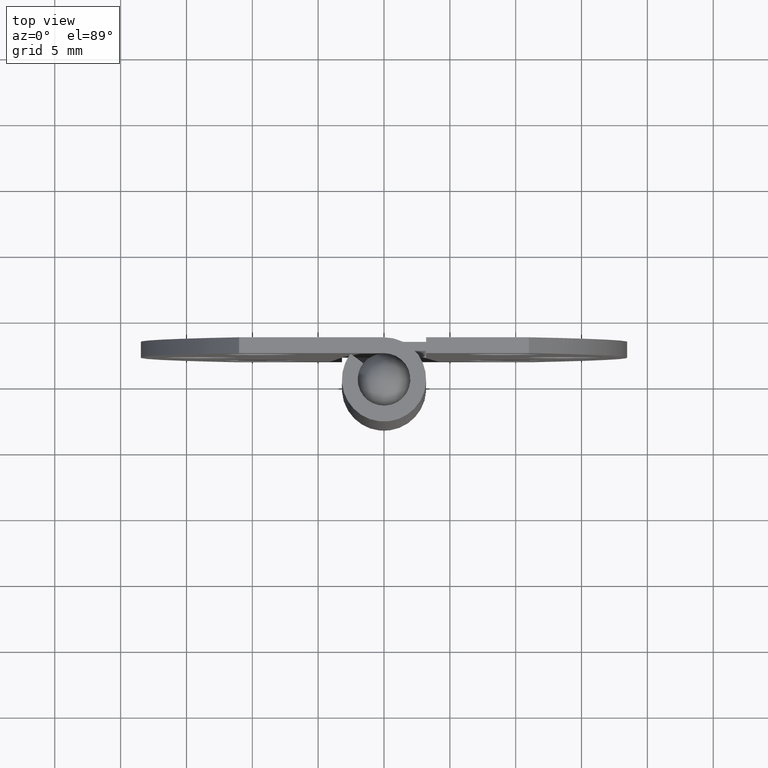
[diagram: clean part render]
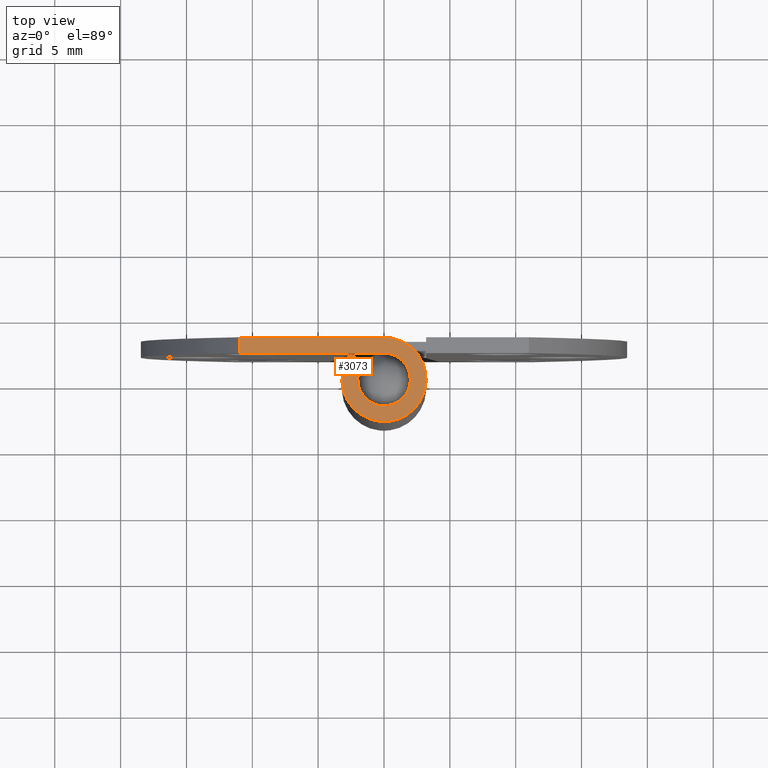
[diagram: same view with one face highlighted and labeled with its STEP entity id]
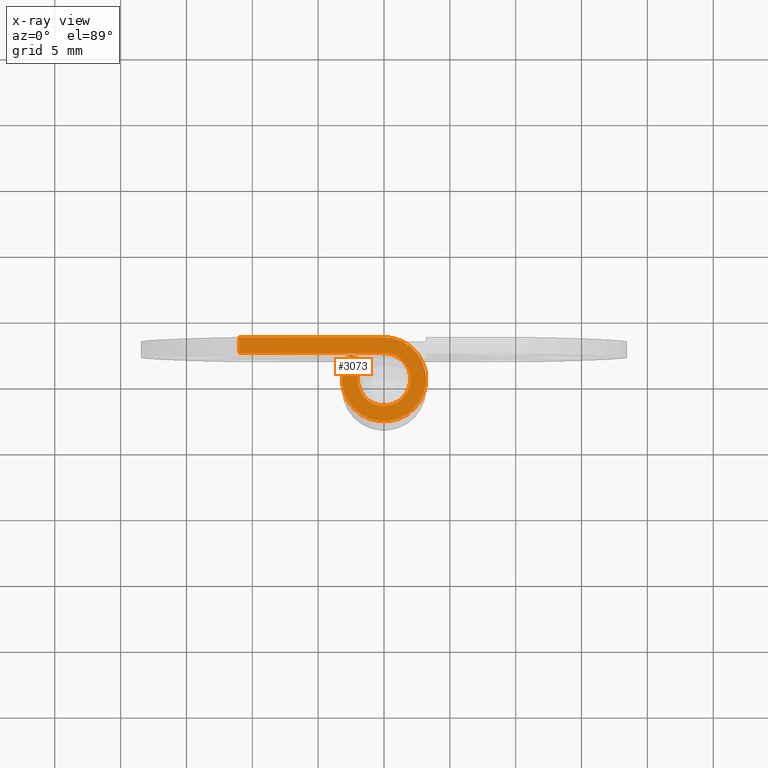
[diagram: x-ray of the same camera — body ghosted, the highlighted face saturated]
A machine part, top view. The second image highlights one B-rep face of the part: STEP entity #3073.
The next image is the same camera in x-ray: the body ghosted, the highlighted face saturated — about 0% of this face is hidden behind the body in this view.
In plain terms, the highlighted face is a freeform B-spline surface patch.
Its self-contained STEP definition (entity closure, byte-faithful):
#2957=CARTESIAN_POINT('',(-11.000002866977200,3.200000999999955,40.199997000000103));
#2958=VERTEX_POINT('',#2957);
#2981=CARTESIAN_POINT('',(-11.000002866977200,2.0,40.199997000000103));
#2982=VERTEX_POINT('',#2981);
#2996=CARTESIAN_POINT('',(-11.000002866977200,2.0,40.199997000000103));
#2997=CARTESIAN_POINT('',(-11.000002866977200,3.200000999999955,40.199997000000103));
#2998=QUASI_UNIFORM_CURVE('',1,(#2996,#2997),.UNSPECIFIED.,.F.,.U.);
#2999=EDGE_CURVE('',#2982,#2958,#2998,.T.);
#3004=CARTESIAN_POINT('',(-11.709168384274429,-3.509201668856707,40.199997000000103));
#3005=CARTESIAN_POINT('',(3.906671435826643,-3.509201668856707,40.199997000000103));
#3006=CARTESIAN_POINT('',(-11.709168384274429,3.519182714252231,40.199997000000103));
#3007=CARTESIAN_POINT('',(3.906671435826643,3.519182714252231,40.199997000000103));
#3008=B_SPLINE_SURFACE_WITH_KNOTS('',1,1,((#3004,#3006),(#3005,#3007)),.UNSPECIFIED.,.F.,.F.,.U.,(2,2),(2,2),(0.0,15.615839820101071),(0.0,7.028384383108937),.UNSPECIFIED.);
#3009=CARTESIAN_POINT('',(1.959371E-016,3.200001000000000,40.199997000000103));
#3010=VERTEX_POINT('',#3009);
#3011=CARTESIAN_POINT('',(1.959371E-016,3.200001000000000,40.199997000000103));
#3012=CARTESIAN_POINT('',(-11.000002866977200,3.200000999999955,40.199997000000103));
#3013=QUASI_UNIFORM_CURVE('',1,(#3011,#3012),.UNSPECIFIED.,.F.,.U.);
#3014=EDGE_CURVE('',#3010,#2958,#3013,.T.);
#3015=ORIENTED_EDGE('',*,*,#3014,.T.);
#3016=ORIENTED_EDGE('',*,*,#2999,.F.);
#3017=CARTESIAN_POINT('',(-3.673819E-016,2.0,40.199997000000103));
#3018=VERTEX_POINT('',#3017);
#3019=CARTESIAN_POINT('',(-11.000002866977200,2.0,40.199997000000103));
#3020=CARTESIAN_POINT('',(-3.673819E-016,2.0,40.199997000000103));
#3021=QUASI_UNIFORM_CURVE('',1,(#3019,#3020),.UNSPECIFIED.,.F.,.U.);
#3022=EDGE_CURVE('',#2982,#3018,#3021,.T.);
#3023=ORIENTED_EDGE('',*,*,#3022,.T.);
#3024=CARTESIAN_POINT('',(-1.585764599757570,1.218749619140746,40.199997000000103));
#3025=VERTEX_POINT('',#3024);
#3026=CARTESIAN_POINT('',(0.0,2.0,40.199997000000103));
#3027=CARTESIAN_POINT('',(1.587628036112341,2.000000000000000,40.199997000000103));
#3028=CARTESIAN_POINT('',(1.947841730135697,0.453775929663500,40.199997000000103));
#3029=CARTESIAN_POINT('',(2.308055424159054,-1.092448140672999,40.199997000000103));
#3030=CARTESIAN_POINT('',(0.883883691929688,-1.794087405658026,40.199997000000103));
#3031=CARTESIAN_POINT('',(-0.540288040299679,-2.495726670643053,40.199997000000103));
#3032=CARTESIAN_POINT('',(-1.546756586115895,-1.267889610063550,40.199997000000103));
#3033=CARTESIAN_POINT('',(-2.553225131932113,-0.040052549484046,40.199997000000103));
#3034=CARTESIAN_POINT('',(-1.585764599757571,1.218749619140745,40.199997000000103));
#3042=(BOUNDED_CURVE()B_SPLINE_CURVE(2,(#3026,#3027,#3028,#3029,#3030,#3031,#3032,#3033,#3034),.UNSPECIFIED.,.F.,.U.)B_SPLINE_CURVE_WITH_KNOTS((3,2,2,2,3),(0.0,0.250000000000000,0.500000000000000,0.750000000000000,1.0),.UNSPECIFIED.)CURVE()GEOMETRIC_REPRESENTATION_ITEM()RATIONAL_B_SPLINE_CURVE((1.0,0.783226648177828,1.0,0.783226648177828,1.0,0.783226648177828,1.0,0.783226648177828,1.0))REPRESENTATION_ITEM(''));
#3043=EDGE_CURVE('',#3018,#3025,#3042,.T.);
#3044=ORIENTED_EDGE('',*,*,#3043,.T.);
#3045=CARTESIAN_POINT('',(-2.537224152494410,1.950000000000000,40.199997000000103));
#3046=VERTEX_POINT('',#3045);
#3047=CARTESIAN_POINT('',(-1.585764599757570,1.218749619140746,40.199997000000103));
#3048=CARTESIAN_POINT('',(-2.537224152494410,1.950000000000000,40.199997000000103));
#3049=QUASI_UNIFORM_CURVE('',1,(#3047,#3048),.UNSPECIFIED.,.F.,.U.);
#3050=EDGE_CURVE('',#3025,#3046,#3049,.T.);
#3051=ORIENTED_EDGE('',*,*,#3050,.T.);
#3052=CARTESIAN_POINT('',(0.0,3.200001000000000,40.199997000000103));
#3053=CARTESIAN_POINT('',(2.540205651593764,3.200001000000001,40.199997000000103));
#3054=CARTESIAN_POINT('',(3.116547742137981,0.726041714349565,40.199997000000103));
#3055=CARTESIAN_POINT('',(3.692889832682198,-1.747917571300869,40.199997000000103));
#3056=CARTESIAN_POINT('',(1.414214349029346,-2.870540746096544,40.199997000000103));
#3057=CARTESIAN_POINT('',(-0.864461134623506,-3.993163920892219,40.199997000000103));
#3058=CARTESIAN_POINT('',(-2.474811311163726,-2.028624010046485,40.199997000000103));
#3059=CARTESIAN_POINT('',(-4.085161487703948,-0.064084099200750,40.199997000000103));
#3060=CARTESIAN_POINT('',(-2.537224152494413,1.950000000000002,40.199997000000103));
#3068=(BOUNDED_CURVE()B_SPLINE_CURVE(2,(#3052,#3053,#3054,#3055,#3056,#3057,#3058,#3059,#3060),.UNSPECIFIED.,.F.,.U.)B_SPLINE_CURVE_WITH_KNOTS((3,2,2,2,3),(0.0,0.250000000000000,0.500000000000000,0.750000000000000,1.0),.UNSPECIFIED.)CURVE()GEOMETRIC_REPRESENTATION_ITEM()RATIONAL_B_SPLINE_CURVE((1.0,0.783226648177828,1.0,0.783226648177828,1.0,0.783226648177828,1.0,0.783226648177828,1.0))REPRESENTATION_ITEM(''));
#3069=EDGE_CURVE('',#3010,#3046,#3068,.T.);
#3070=ORIENTED_EDGE('',*,*,#3069,.F.);
#3071=EDGE_LOOP('',(#3015,#3016,#3023,#3044,#3051,#3070));
#3072=FACE_OUTER_BOUND('',#3071,.T.);
#3073=ADVANCED_FACE('',(#3072),#3008,.T.);